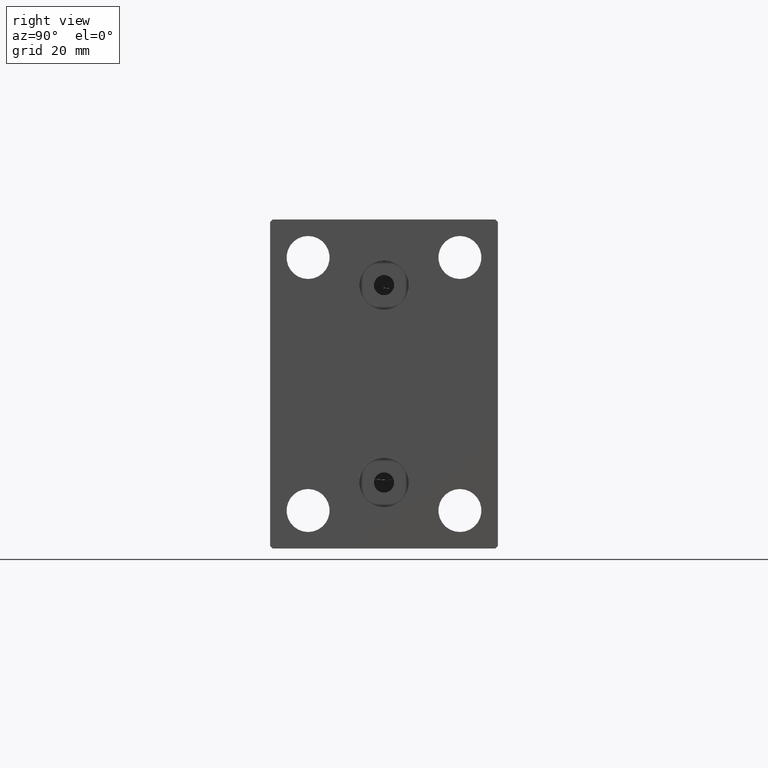
[diagram: clean part render]
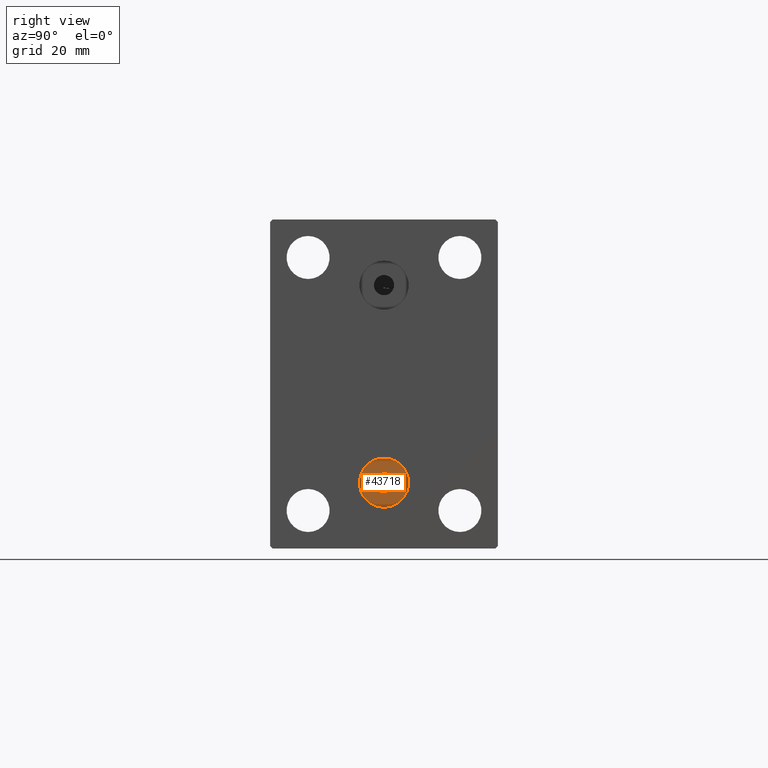
[diagram: same view with one face highlighted and labeled with its STEP entity id]
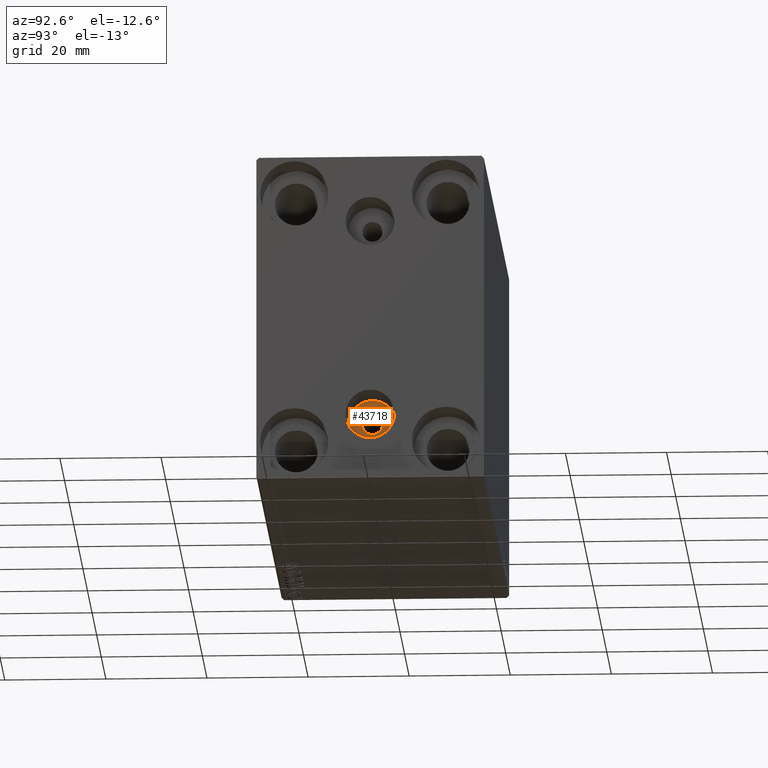
[diagram: same view with one face highlighted and labeled with its STEP entity id]
A machine part, right view. The second image highlights one B-rep face of the part: STEP entity #43718.
A second angle (auxiliary view) of the same face is appended — the face is thin or edge-on in the first view.
In plain terms, the highlighted planar face has unit normal (-1, 0, 0).
Its self-contained STEP definition (entity closure, byte-faithful):
#536 = PLANE ( 'NONE',  #40715 ) ;
#802 = EDGE_CURVE ( 'NONE', #40177, #37270, #28913, .T. ) ;
#926 = CIRCLE ( 'NONE', #33465, 2.000000000000001776 ) ;
#1117 = DIRECTION ( 'NONE',  ( 0.000000000000000000, 0.000000000000000000, -1.000000000000000000 ) ) ;
#1141 = AXIS2_PLACEMENT_3D ( 'NONE', #25049, #14646, #1117 ) ;
#2472 = VERTEX_POINT ( 'NONE', #29283 ) ;
#3672 = EDGE_CURVE ( 'NONE', #37270, #40177, #42431, .T. ) ;
#4040 = CARTESIAN_POINT ( 'NONE',  ( 100.0000000000000000, 2.983239602722951428E-15, -14.63999999999999702 ) ) ;
#4510 = EDGE_LOOP ( 'NONE', ( #8333, #30108 ) ) ;
#7405 = FACE_OUTER_BOUND ( 'NONE', #25846, .T. ) ;
#8195 = CARTESIAN_POINT ( 'NONE',  ( 100.0000000000000000, 2.632990618166808841E-15, -17.49999999999999645 ) ) ;
#8333 = ORIENTED_EDGE ( 'NONE', *, *, #29850, .F. ) ;
#8386 = AXIS2_PLACEMENT_3D ( 'NONE', #20816, #28563, #38286 ) ;
#8778 = ORIENTED_EDGE ( 'NONE', *, *, #3672, .T. ) ;
#11170 = CARTESIAN_POINT ( 'NONE',  ( 100.0000000000000000, 2.388061258337338150E-15, -19.49999999999999645 ) ) ;
#12022 = DIRECTION ( 'NONE',  ( 0.000000000000000000, 0.000000000000000000, -1.000000000000000000 ) ) ;
#14061 = DIRECTION ( 'NONE',  ( -1.000000000000000000, -0.000000000000000000, 0.000000000000000000 ) ) ;
#14646 = DIRECTION ( 'NONE',  ( 1.000000000000000000, 0.000000000000000000, 0.000000000000000000 ) ) ;
#18440 = CARTESIAN_POINT ( 'NONE',  ( 100.0000000000000000, 2.388061258337338150E-15, -19.49999999999999645 ) ) ;
#20518 = DIRECTION ( 'NONE',  ( 1.000000000000000000, 0.000000000000000000, -0.000000000000000000 ) ) ;
#20816 = CARTESIAN_POINT ( 'NONE',  ( 100.0000000000000000, 2.388061258337338150E-15, -19.49999999999999645 ) ) ;
#21248 = VERTEX_POINT ( 'NONE', #8195 ) ;
#21360 = FACE_BOUND ( 'NONE', #4510, .T. ) ;
#24679 = DIRECTION ( 'NONE',  ( 0.000000000000000000, 0.000000000000000000, 1.000000000000000000 ) ) ;
#25049 = CARTESIAN_POINT ( 'NONE',  ( 100.0000000000000000, 2.388061258337338150E-15, -19.49999999999999645 ) ) ;
#25543 = DIRECTION ( 'NONE',  ( 1.000000000000000000, 0.000000000000000000, 0.000000000000000000 ) ) ;
#25846 = EDGE_LOOP ( 'NONE', ( #27067, #8778 ) ) ;
#27067 = ORIENTED_EDGE ( 'NONE', *, *, #802, .T. ) ;
#28563 = DIRECTION ( 'NONE',  ( 1.000000000000000000, 0.000000000000000000, -0.000000000000000000 ) ) ;
#28913 = CIRCLE ( 'NONE', #8386, 4.859999999999999432 ) ;
#29283 = CARTESIAN_POINT ( 'NONE',  ( 100.0000000000000000, 2.388061258337338150E-15, -21.50000000000000000 ) ) ;
#29850 = EDGE_CURVE ( 'NONE', #2472, #21248, #926, .T. ) ;
#30108 = ORIENTED_EDGE ( 'NONE', *, *, #39892, .F. ) ;
#31850 = AXIS2_PLACEMENT_3D ( 'NONE', #37338, #20518, #34031 ) ;
#33465 = AXIS2_PLACEMENT_3D ( 'NONE', #18440, #25543, #12022 ) ;
#34031 = DIRECTION ( 'NONE',  ( 0.000000000000000000, 0.000000000000000000, 1.000000000000000000 ) ) ;
#35169 = CARTESIAN_POINT ( 'NONE',  ( 100.0000000000000000, 2.388061258337338150E-15, -24.35999999999999588 ) ) ;
#37270 = VERTEX_POINT ( 'NONE', #4040 ) ;
#37338 = CARTESIAN_POINT ( 'NONE',  ( 100.0000000000000000, 2.388061258337338150E-15, -19.49999999999999645 ) ) ;
#38286 = DIRECTION ( 'NONE',  ( 0.000000000000000000, 0.000000000000000000, 1.000000000000000000 ) ) ;
#39892 = EDGE_CURVE ( 'NONE', #21248, #2472, #40752, .T. ) ;
#40177 = VERTEX_POINT ( 'NONE', #35169 ) ;
#40715 = AXIS2_PLACEMENT_3D ( 'NONE', #11170, #14061, #24679 ) ;
#40752 = CIRCLE ( 'NONE', #1141, 2.000000000000001776 ) ;
#42431 = CIRCLE ( 'NONE', #31850, 4.859999999999999432 ) ;
#43718 = ADVANCED_FACE ( 'NONE', ( #21360, #7405 ), #536, .F. ) ;